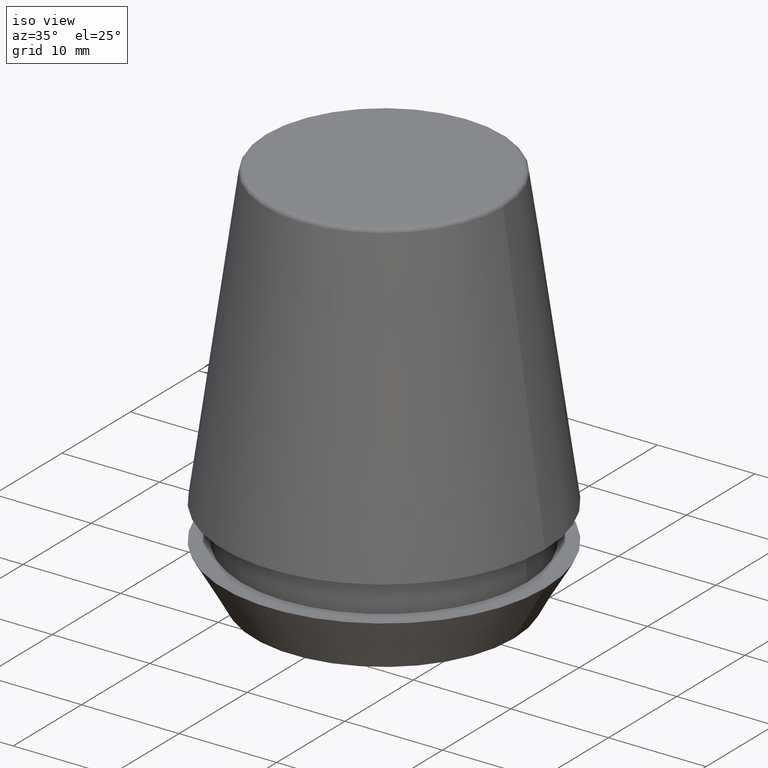
[diagram: clean part render]
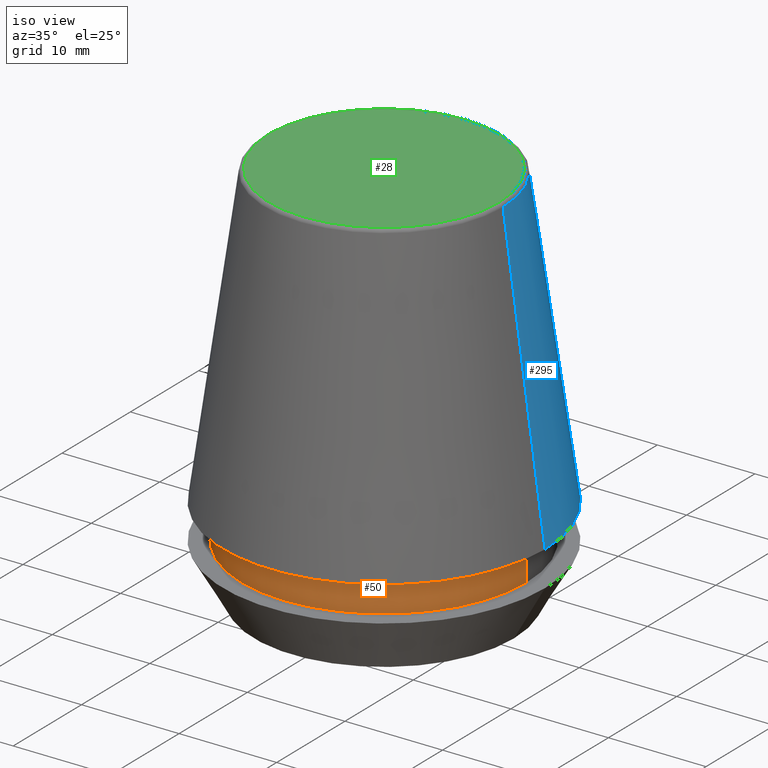
[diagram: same view with three faces highlighted in distinct colors, each labeled with its STEP entity id]
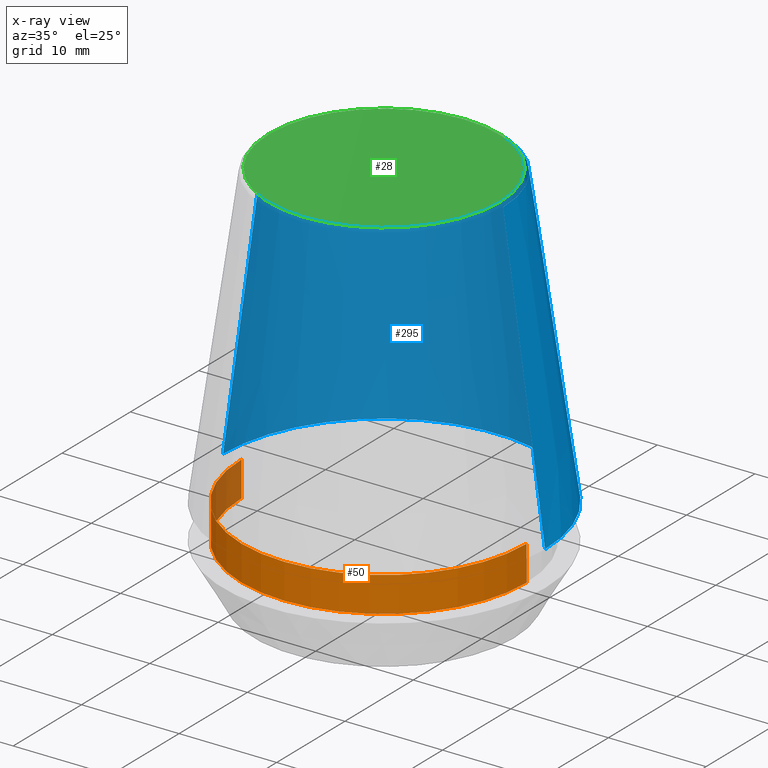
[diagram: x-ray of the same camera — body ghosted, the three highlighted faces saturated]
A machine part, iso view with three faces highlighted in distinct colors.
The next image is the same camera in x-ray (body ghosted, the three faces saturated) — at least one of them is partly hidden behind the body in this view.
Their STEP definitions:

[orange] entity #50 — the highlighted cylindrical surface (partial cylindrical patch) has radius 14.6 mm, axis along (-0, -0, 1).
#12 = VERTEX_POINT ( 'NONE', #91 ) ;
#25 = EDGE_LOOP ( 'NONE', ( #43, #64, #294, #130 ) ) ;
#27 = VERTEX_POINT ( 'NONE', #85 ) ;
#41 = DIRECTION ( 'NONE',  ( -0.0000000000000000000, -0.0000000000000000000, 1.000000000000000000 ) ) ;
#43 = ORIENTED_EDGE ( 'NONE', *, *, #212, .F. ) ;
#50 = ADVANCED_FACE ( 'NONE', ( #243 ), #343, .T. ) ;
#64 = ORIENTED_EDGE ( 'NONE', *, *, #147, .T. ) ;
#85 = CARTESIAN_POINT ( 'NONE',  ( -14.60000000000000000, 1.787984326755135800E-015, 9.099999999999997900 ) ) ;
#91 = CARTESIAN_POINT ( 'NONE',  ( -14.60000000000000000, 1.787984326755135800E-015, 5.500000000000005300 ) ) ;
#101 = LINE ( 'NONE', #185, #281 ) ;
#104 = CARTESIAN_POINT ( 'NONE',  ( 14.60000000000000000, 0.0000000000000000000, 5.500000000000005300 ) ) ;
#111 = DIRECTION ( 'NONE',  ( 1.000000000000000000, 0.0000000000000000000, 0.0000000000000000000 ) ) ;
#128 = DIRECTION ( 'NONE',  ( -0.0000000000000000000, -0.0000000000000000000, 1.000000000000000000 ) ) ;
#130 = ORIENTED_EDGE ( 'NONE', *, *, #289, .F. ) ;
#147 = EDGE_CURVE ( 'NONE', #12, #286, #364, .T. ) ;
#151 = AXIS2_PLACEMENT_3D ( 'NONE', #369, #128, #307 ) ;
#154 = EDGE_CURVE ( 'NONE', #286, #262, #101, .T. ) ;
#157 = AXIS2_PLACEMENT_3D ( 'NONE', #285, #41, #225 ) ;
#185 = CARTESIAN_POINT ( 'NONE',  ( 14.60000000000000000, 0.0000000000000000000, 101.8074564848000400 ) ) ;
#190 = CARTESIAN_POINT ( 'NONE',  ( -14.60000000000000000, 1.787984326755135800E-015, 101.8074564848000400 ) ) ;
#212 = EDGE_CURVE ( 'NONE', #12, #27, #300, .T. ) ;
#218 = VECTOR ( 'NONE', #342, 1000.000000000000000 ) ;
#225 = DIRECTION ( 'NONE',  ( 1.000000000000000000, 0.0000000000000000000, 0.0000000000000000000 ) ) ;
#243 = FACE_OUTER_BOUND ( 'NONE', #25, .T. ) ;
#262 = VERTEX_POINT ( 'NONE', #380 ) ;
#281 = VECTOR ( 'NONE', #303, 1000.000000000000000 ) ;
#285 = CARTESIAN_POINT ( 'NONE',  ( 0.0000000000000000000, 0.0000000000000000000, 9.099999999999997900 ) ) ;
#286 = VERTEX_POINT ( 'NONE', #104 ) ;
#289 = EDGE_CURVE ( 'NONE', #27, #262, #379, .T. ) ;
#294 = ORIENTED_EDGE ( 'NONE', *, *, #154, .T. ) ;
#299 = DIRECTION ( 'NONE',  ( -0.0000000000000000000, -0.0000000000000000000, 1.000000000000000000 ) ) ;
#300 = LINE ( 'NONE', #190, #218 ) ;
#301 = CARTESIAN_POINT ( 'NONE',  ( 0.0000000000000000000, 0.0000000000000000000, 101.8074564848000400 ) ) ;
#303 = DIRECTION ( 'NONE',  ( -0.0000000000000000000, -0.0000000000000000000, 1.000000000000000000 ) ) ;
#307 = DIRECTION ( 'NONE',  ( 1.000000000000000000, 0.0000000000000000000, 0.0000000000000000000 ) ) ;
#342 = DIRECTION ( 'NONE',  ( -0.0000000000000000000, -0.0000000000000000000, 1.000000000000000000 ) ) ;
#343 = CYLINDRICAL_SURFACE ( 'NONE', #345, 14.60000000000000000 ) ;
#345 = AXIS2_PLACEMENT_3D ( 'NONE', #301, #299, #111 ) ;
#364 = CIRCLE ( 'NONE', #151, 14.60000000000000000 ) ;
#369 = CARTESIAN_POINT ( 'NONE',  ( 0.0000000000000000000, 0.0000000000000000000, 5.500000000000005300 ) ) ;
#379 = CIRCLE ( 'NONE', #157, 14.60000000000000000 ) ;
#380 = CARTESIAN_POINT ( 'NONE',  ( 14.60000000000000000, 0.0000000000000000000, 9.099999999999997900 ) ) ;

[blue] entity #295 — the highlighted conical surface has half-angle 8 deg.
#1 = ORIENTED_EDGE ( 'NONE', *, *, #200, .F. ) ;
#9 = CIRCLE ( 'NONE', #103, 16.50032537154048700 ) ;
#10 = CARTESIAN_POINT ( 'NONE',  ( 12.20600611160694300, 1.757755848304969800E-015, 39.65566924038402900 ) ) ;
#11 = LINE ( 'NONE', #161, #309 ) ;
#40 = DIRECTION ( 'NONE',  ( -0.0000000000000000000, -0.0000000000000000000, 1.000000000000000000 ) ) ;
#48 = FACE_OUTER_BOUND ( 'NONE', #253, .T. ) ;
#56 = CIRCLE ( 'NONE', #320, 12.20600611160694300 ) ;
#67 = VECTOR ( 'NONE', #378, 1000.000000000000000 ) ;
#68 = CARTESIAN_POINT ( 'NONE',  ( -12.20600611160694300, 0.0000000000000000000, 39.65566924038402900 ) ) ;
#100 = DIRECTION ( 'NONE',  ( -0.1391731009600586900, 0.0000000000000000000, -0.9902680687415712500 ) ) ;
#103 = AXIS2_PLACEMENT_3D ( 'NONE', #374, #159, #276 ) ;
#114 = ORIENTED_EDGE ( 'NONE', *, *, #258, .F. ) ;
#140 = AXIS2_PLACEMENT_3D ( 'NONE', #348, #349, #220 ) ;
#150 = LINE ( 'NONE', #282, #67 ) ;
#159 = DIRECTION ( 'NONE',  ( -0.0000000000000000000, -0.0000000000000000000, 1.000000000000000000 ) ) ;
#160 = EDGE_CURVE ( 'NONE', #358, #261, #9, .T. ) ;
#161 = CARTESIAN_POINT ( 'NONE',  ( -16.50032537154048700, 0.0000000000000000000, 9.099999999999997900 ) ) ;
#163 = DIRECTION ( 'NONE',  ( 1.000000000000000000, 0.0000000000000000000, 0.0000000000000000000 ) ) ;
#174 = ORIENTED_EDGE ( 'NONE', *, *, #202, .T. ) ;
#194 = VERTEX_POINT ( 'NONE', #10 ) ;
#200 = EDGE_CURVE ( 'NONE', #213, #261, #11, .T. ) ;
#202 = EDGE_CURVE ( 'NONE', #194, #358, #150, .T. ) ;
#213 = VERTEX_POINT ( 'NONE', #68 ) ;
#220 = DIRECTION ( 'NONE',  ( -1.000000000000000000, 0.0000000000000000000, 0.0000000000000000000 ) ) ;
#253 = EDGE_LOOP ( 'NONE', ( #114, #174, #287, #1 ) ) ;
#255 = CARTESIAN_POINT ( 'NONE',  ( 0.0000000000000000000, 0.0000000000000000000, 39.65566924038402900 ) ) ;
#258 = EDGE_CURVE ( 'NONE', #194, #213, #56, .T. ) ;
#261 = VERTEX_POINT ( 'NONE', #284 ) ;
#276 = DIRECTION ( 'NONE',  ( 1.000000000000000000, 0.0000000000000000000, 0.0000000000000000000 ) ) ;
#282 = CARTESIAN_POINT ( 'NONE',  ( 16.50032537154048700, 2.020707065114692300E-015, 9.099999999999997900 ) ) ;
#284 = CARTESIAN_POINT ( 'NONE',  ( -16.50032537154048700, 0.0000000000000000000, 9.099999999999997900 ) ) ;
#287 = ORIENTED_EDGE ( 'NONE', *, *, #160, .T. ) ;
#295 = ADVANCED_FACE ( 'NONE', ( #48 ), #359, .T. ) ;
#309 = VECTOR ( 'NONE', #100, 1000.000000000000000 ) ;
#320 = AXIS2_PLACEMENT_3D ( 'NONE', #255, #40, #163 ) ;
#348 = CARTESIAN_POINT ( 'NONE',  ( 0.0000000000000000000, 0.0000000000000000000, 9.099999999999997900 ) ) ;
#349 = DIRECTION ( 'NONE',  ( 0.0000000000000000000, 0.0000000000000000000, -1.000000000000000000 ) ) ;
#352 = CARTESIAN_POINT ( 'NONE',  ( 16.50032537154048700, 2.020707065114692300E-015, 9.099999999999997900 ) ) ;
#358 = VERTEX_POINT ( 'NONE', #352 ) ;
#359 = CONICAL_SURFACE ( 'NONE', #140, 16.50032537154048700, 0.1396263401595395900 ) ;
#374 = CARTESIAN_POINT ( 'NONE',  ( 0.0000000000000000000, 0.0000000000000000000, 9.099999999999997900 ) ) ;
#378 = DIRECTION ( 'NONE',  ( 0.1391731009600586900, 1.704378926181473100E-017, -0.9902680687415712500 ) ) ;

[green] entity #28 — the highlighted planar face has unit normal (0, 0, -1).
#21 = CARTESIAN_POINT ( 'NONE',  ( 0.0000000000000000000, 11.80989888411031400, 40.00000000000000700 ) ) ;
#28 = ADVANCED_FACE ( 'NONE', ( #183 ), #31, .F. ) ;
#31 = PLANE ( 'NONE',  #136 ) ;
#47 = DIRECTION ( 'NONE',  ( 1.000000000000000000, 0.0000000000000000000, 0.0000000000000000000 ) ) ;
#52 = VERTEX_POINT ( 'NONE', #152 ) ;
#123 = AXIS2_PLACEMENT_3D ( 'NONE', #260, #259, #47 ) ;
#125 = CARTESIAN_POINT ( 'NONE',  ( 11.80989888411031400, 0.0000000000000000000, 40.00000000000000700 ) ) ;
#132 = VERTEX_POINT ( 'NONE', #125 ) ;
#136 = AXIS2_PLACEMENT_3D ( 'NONE', #21, #306, #328 ) ;
#137 = CIRCLE ( 'NONE', #123, 11.80989888411031400 ) ;
#139 = DIRECTION ( 'NONE',  ( 1.000000000000000000, 0.0000000000000000000, 0.0000000000000000000 ) ) ;
#152 = CARTESIAN_POINT ( 'NONE',  ( -11.80989888411031400, 1.470550059081603400E-015, 40.00000000000000700 ) ) ;
#165 = EDGE_LOOP ( 'NONE', ( #362, #373 ) ) ;
#172 = CARTESIAN_POINT ( 'NONE',  ( 0.0000000000000000000, 0.0000000000000000000, 40.00000000000000700 ) ) ;
#183 = FACE_OUTER_BOUND ( 'NONE', #165, .T. ) ;
#230 = DIRECTION ( 'NONE',  ( -0.0000000000000000000, -0.0000000000000000000, 1.000000000000000000 ) ) ;
#242 = AXIS2_PLACEMENT_3D ( 'NONE', #172, #230, #139 ) ;
#259 = DIRECTION ( 'NONE',  ( -0.0000000000000000000, -0.0000000000000000000, 1.000000000000000000 ) ) ;
#260 = CARTESIAN_POINT ( 'NONE',  ( 0.0000000000000000000, 0.0000000000000000000, 40.00000000000000700 ) ) ;
#306 = DIRECTION ( 'NONE',  ( 0.0000000000000000000, 0.0000000000000000000, -1.000000000000000000 ) ) ;
#311 = EDGE_CURVE ( 'NONE', #52, #132, #137, .T. ) ;
#328 = DIRECTION ( 'NONE',  ( -1.000000000000000000, 0.0000000000000000000, -0.0000000000000000000 ) ) ;
#350 = CIRCLE ( 'NONE', #242, 11.80989888411031400 ) ;
#362 = ORIENTED_EDGE ( 'NONE', *, *, #365, .T. ) ;
#365 = EDGE_CURVE ( 'NONE', #132, #52, #350, .T. ) ;
#373 = ORIENTED_EDGE ( 'NONE', *, *, #311, .T. ) ;